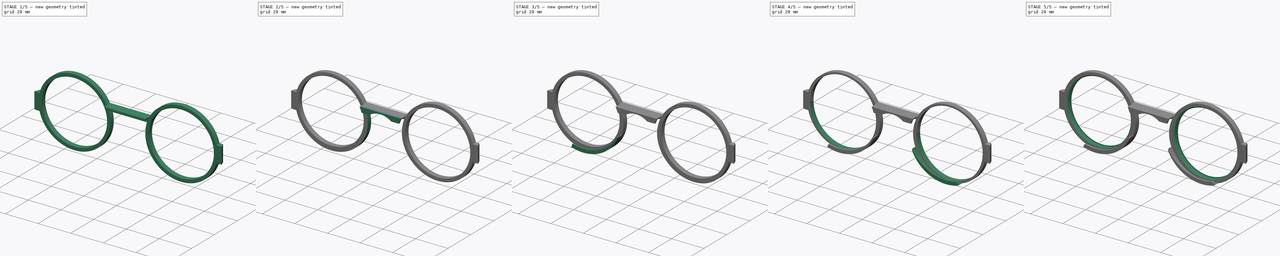
[diagram: build sequence overview — one tinted view per stage of 5, left to right]
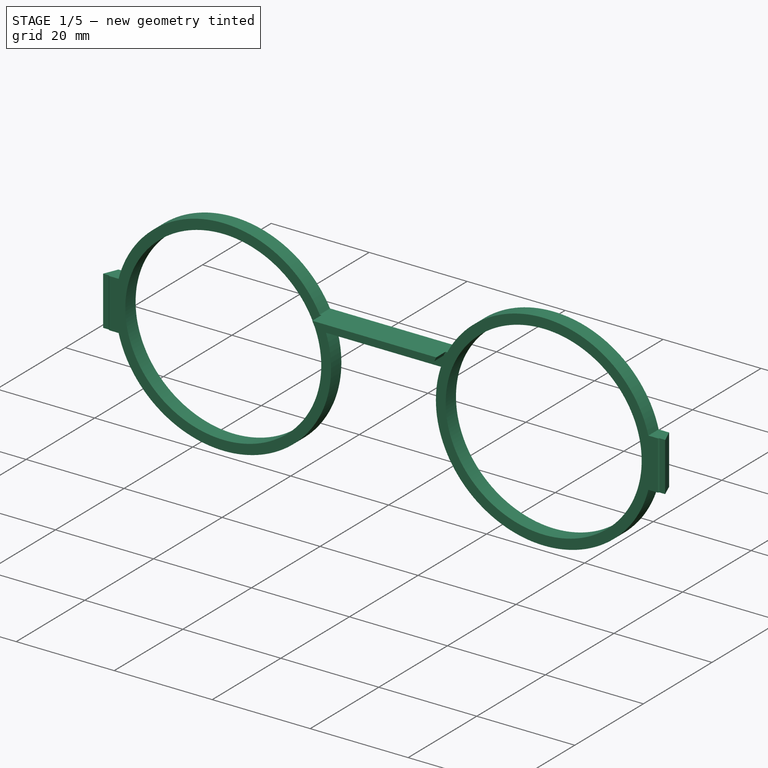
[diagram: stage 1 of 5 — iso view after this stage's code; geometry added in this stage tinted green]
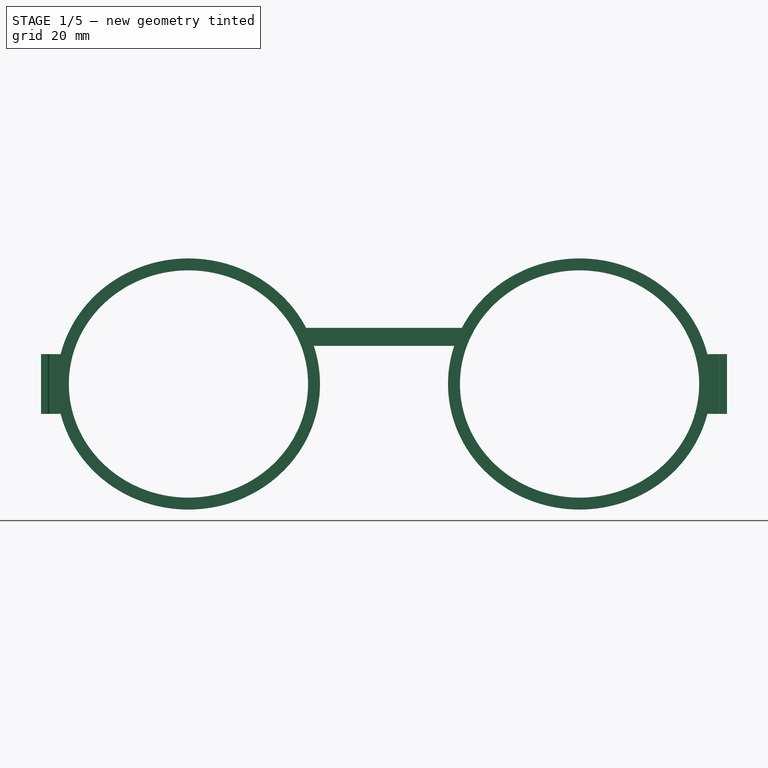
[diagram: stage 1 of 5 — front view after this stage's code; geometry added in this stage tinted green]
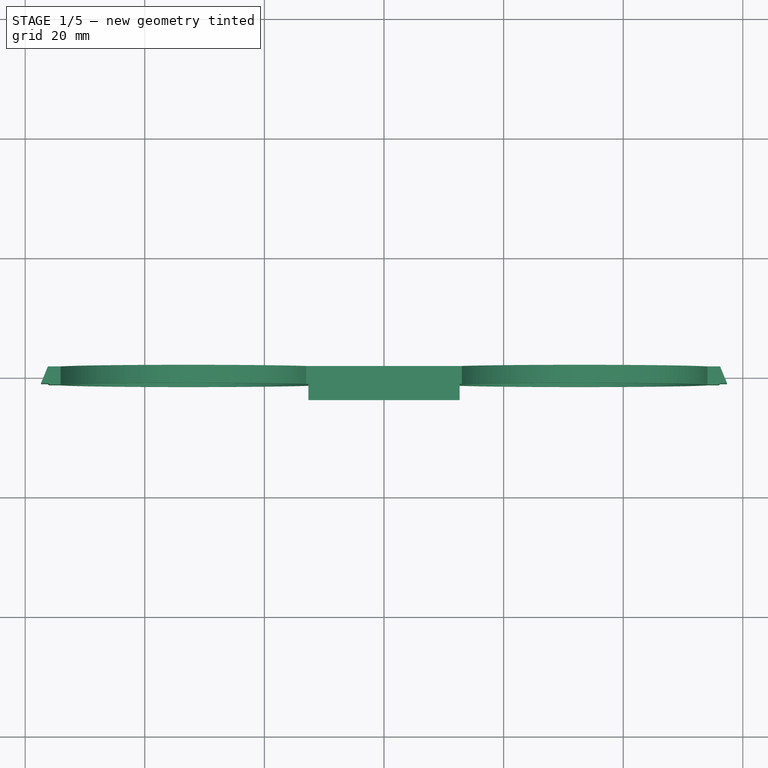
[diagram: stage 1 of 5 — top view after this stage's code; geometry added in this stage tinted green]
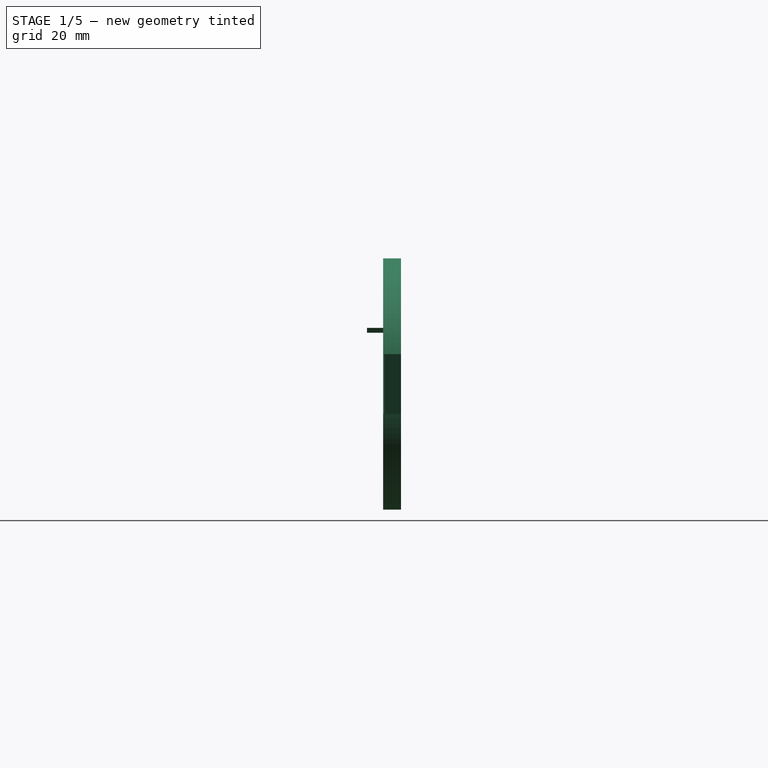
[diagram: stage 1 of 5 — right view after this stage's code; geometry added in this stage tinted green]
FCSTD DOCUMENT  (FreeCAD 1.1R39679 (Git))
Label: clip-on_shades_for_round_38.8mm_diam_lenses
License: All rights reserved
LicenseURL: http://en.wikipedia.org/wiki/All_rights_reserved
objects: Sketcher::SketchObject×12, PartDesign::Pad×11, PartDesign::Pocket×3, PartDesign::Mirrored×3, PartDesign::Fillet×1, App::Point×1, PartDesign::Chamfer×1, PartDesign::Body×1
note: 79 computed .brp shape members not serialized (recipe doc carries the construction recipe); baked Part::Feature solids carry a one-line shape summary decoded from their .brp

FEATURE [Sketcher::SketchObject] Sketch
  ArcFitTolerance = 1e-06
  AttachmentSupport = -> [XZ_Plane]
  ExternalTypes = [0]
  FullyConstrained = true
  MakeInternals = false
  MapMode = 5
  Placement = pos=(0,0,0) rot=(1,0,0;1.5708rad)
  sketch-geometry (24):
    g0: Ellipse CenterX=-32.7 CenterY=0 CenterZ=0 NormalX=0 NormalY=0 NormalZ=1 MajorRadius=20 MinorRadius=19 AngleXU=-2.2e-15
    g1: LineSegment [constr] StartX=-12.7 StartY=0 StartZ=0 EndX=-52.7 EndY=0 EndZ=0
    g2: LineSegment [constr] StartX=-32.7 StartY=19 StartZ=0 EndX=-32.7 EndY=-19 EndZ=0
    g3: GeomPoint [constr] X=-26.455 Y=-1.37e-14 Z=0
    g4: GeomPoint [constr] X=-38.945 Y=1.39e-14 Z=0
    g5: Ellipse CenterX=32.7 CenterY=0 CenterZ=0 NormalX=0 NormalY=0 NormalZ=1 MajorRadius=20 MinorRadius=19 AngleXU=0
    g6: LineSegment [constr] StartX=52.7 StartY=0 StartZ=0 EndX=12.7 EndY=0 EndZ=0
    g7: LineSegment [constr] StartX=32.7 StartY=19 StartZ=0 EndX=32.7 EndY=-19 EndZ=0
    g8: GeomPoint [constr] X=38.945 Y=0 Z=0
    g9: GeomPoint [constr] X=26.455 Y=0 Z=0
    g10: ArcOfEllipse CenterX=-32.7 CenterY=0 CenterZ=0 NormalX=0 NormalY=0 NormalZ=1 MajorRadius=22 MinorRadius=21 AngleXU=-4.6e-15 StartAngle=0.410218 EndAngle=6.59162
    g11: LineSegment [constr] StartX=-10.7 StartY=0 StartZ=0 EndX=-54.7 EndY=0 EndZ=0
    g12: LineSegment [constr] StartX=-32.7 StartY=21 StartZ=0 EndX=-32.7 EndY=-21 EndZ=0
    g13: GeomPoint [constr] X=-26.1426 Y=-3.02e-14 Z=0
    g14: GeomPoint [constr] X=-39.2574 Y=3e-14 Z=0
    g15: ArcOfEllipse CenterX=32.7 CenterY=0 CenterZ=0 NormalX=0 NormalY=0 NormalZ=1 MajorRadius=22 MinorRadius=21 AngleXU=0 StartAngle=2.83315 EndAngle=9.01456
    g16: LineSegment [constr] StartX=54.7 StartY=0 StartZ=0 EndX=10.7 EndY=0 EndZ=0
    g17: LineSegment [constr] StartX=32.7 StartY=21 StartZ=0 EndX=32.7 EndY=-21 EndZ=0
    g18: GeomPoint [constr] X=39.2574 Y=0 Z=0
    g19: GeomPoint [constr] X=26.1426 Y=-3e-16 Z=0
    g20: LineSegment StartX=-11.7382 StartY=6.375 StartZ=0 EndX=11.7382 EndY=6.375 EndZ=0
    g21: LineSegment StartX=-12.5253 StartY=8.375 StartZ=0 EndX=12.5253 EndY=8.375 EndZ=0
    g22: Circle CenterX=-32.7 CenterY=0 CenterZ=0 NormalX=0 NormalY=0 NormalZ=1 AngleXU=0 Radius=0.5
    g23: Circle CenterX=32.7 CenterY=0 CenterZ=0 NormalX=0 NormalY=0 NormalZ=1 AngleXU=0 Radius=0.5
  constraints (33):
    c: InternalAlignment(g1-g4 -> g0) x4
    c: PointOnObject(g0,g-1)
    c: Horizontal(g1)
    c: DistanceX(g1,g1) = 40
    c: DistanceY(g2,g2) = 38
    c: InternalAlignment(g6-g9 -> g5) x4
    c: Horizontal(g6)
    c: Equal(g1,g6)
    c: Equal(g7,g2)
    c: Symmetric(g5,g0,g-2)
    c: DistanceX(g0,g5) = 65.4
    c: InternalAlignment(g11-g14 -> g10) x4
    c: Coincident(g10,g0)
    c: Horizontal(g11)
    c: DistanceX(g1,g11) = 2
    c: DistanceY(g12,g2) = 2
    c: InternalAlignment(g16-g19 -> g15) x4
    c: Symmetric(g0,g15,g-2)
    c: Horizontal(g16)
    c: Equal(g16,g11)
    c: Equal(g17,g12)
    c: Horizontal(g10,g15)
    c: Horizontal(g15,g10)
    c: Coincident(g20,g10)
    c: Coincident(g20,g15)
    c: Coincident(g21,g10)
    c: Coincident(g21,g15)
    c: Distance(g20,g21) = 2
    c: Distance(g-1,g20) = 6.375
    c: Coincident(g22,g0)
    c: Diameter(g22) = 1
    c: Equal(g22,g23)
    c: Symmetric(g22,g23,g-2)
FEATURE [PartDesign::Pad] Pad  label="Lenses holder"
  Direction = (0,-1,2e-16)
  Length = 3
  Length2 = 10
  Midplane = true
  Placement = pos=(0,0,0) rot=(1,0,0;1.5708rad)
  Profile = -> Sketch
  ReferenceAxis = -> Sketch [N_Axis]
  Suppressed = false
  Type = 0
FEATURE [Sketcher::SketchObject] Sketch012
  ArcFitTolerance = 1e-06
  AttachmentSupport = -> [XY_Plane]
  ExternalGeometry = -> [Pad]
  ExternalTypes = [0]
  FullyConstrained = true
  MakeInternals = false
  MapMode = 5
  sketch-geometry (26):
    g0: LineSegment StartX=-53.2 StartY=1.5 StartZ=0 EndX=-56.2 EndY=1.5 EndZ=0
    g1: LineSegment [constr] StartX=-56.2 StartY=1.5 StartZ=0 EndX=-56.2 EndY=-1.5 EndZ=0
    g2: LineSegment StartX=-53.2 StartY=-1.5 StartZ=0 EndX=-53.2 EndY=1.5 EndZ=0
    g3: LineSegment StartX=53.2 StartY=-1.5 StartZ=0 EndX=53.2 EndY=1.5 EndZ=0
    g4: LineSegment StartX=53.2 StartY=1.5 StartZ=0 EndX=56.2 EndY=1.5 EndZ=0
    g5: LineSegment [constr] StartX=-54.7 StartY=-3.5 StartZ=0 EndX=-10.7 EndY=-3.5 EndZ=0
    g6: Circle [constr] CenterX=-56.2 CenterY=-5 CenterZ=0 NormalX=0 NormalY=0 NormalZ=1 AngleXU=0 Radius=1.5
    g7: ArcOfCircle [constr] CenterX=-53.2 CenterY=-5 CenterZ=0 NormalX=0 NormalY=0 NormalZ=1 AngleXU=0 Radius=1.5 StartAngle=1.5708 EndAngle=3.14159
    g8: LineSegment [constr] StartX=-58.7 StartY=-5 StartZ=0 EndX=-74.5344 EndY=-90 EndZ=0
    g9: LineSegment [constr] StartX=-58.7 StartY=-5 StartZ=0 EndX=-57.7 EndY=-5 EndZ=0
    g10: LineSegment [constr] StartX=-74.5344 StartY=-90 StartZ=0 EndX=-72.5682 EndY=-90.3663 EndZ=0
    g11: LineSegment [constr] StartX=-72.5682 StartY=-90.3663 StartZ=0 EndX=-72.5 EndY=-90 EndZ=0
    g12: LineSegment [constr] StartX=72.5682 StartY=-90.3663 StartZ=0 EndX=72.5 EndY=-90 EndZ=0
    g13: ArcOfEllipse [constr] CenterX=-56.2 CenterY=-6.90806 CenterZ=0 NormalX=0 NormalY=0 NormalZ=1 MajorRadius=5.40806 MinorRadius=2.67182 AngleXU=1.5708 StartAngle=1.11969e-07 EndAngle=1.21022
    g14: GeomPoint [constr] X=-56.2 Y=-1.5 Z=0
    g15: LineSegment StartX=-56.2 StartY=1.5 StartZ=0 EndX=-57.362 EndY=-1.3 EndZ=0
    g16: LineSegment StartX=-57.362 StartY=-1.3 StartZ=0 EndX=-56.2 EndY=-1.3 EndZ=0
    g17: LineSegment [constr] StartX=-57.362 StartY=-1.3 StartZ=0 EndX=-58.2458 EndY=-3.4296 EndZ=0
    g18: LineSegment StartX=57.362 StartY=-1.3 StartZ=0 EndX=56.2 EndY=-1.3 EndZ=0
    g19: LineSegment StartX=56.2 StartY=1.5 StartZ=0 EndX=57.362 EndY=-1.3 EndZ=0
    g20: LineSegment StartX=-56.2 StartY=-1.3 StartZ=0 EndX=-56 EndY=-1.5 EndZ=0
    g21: LineSegment [constr] StartX=-56.2 StartY=-1.5 StartZ=0 EndX=-56 EndY=-1.5 EndZ=0
    g22: GeomPoint [constr] X=-56.2 Y=-1.5 Z=0
    g23: LineSegment StartX=56.2 StartY=-1.3 StartZ=0 EndX=56 EndY=-1.5 EndZ=0
    g24: LineSegment StartX=-53.2 StartY=-1.5 StartZ=0 EndX=-56 EndY=-1.5 EndZ=0
    g25: LineSegment StartX=53.2 StartY=-1.5 StartZ=0 EndX=56 EndY=-1.5 EndZ=0
  constraints (71):
    c: Coincident(g0,g1)
    c: Coincident(g2,g0)
    c: Horizontal(g0)
    c: Vertical(g2)
    c: Coincident(g3,g4)
    c: Symmetric(g3,g0,g-2)
    c: Horizontal(g5)
    c: Vertical(g-3,g5)
    c: Vertical(g-3,g5)
    c: Diameter(g6) = 3
    c: Distance(g-3,g5) = 2
    c: Tangent(g5,g6)
    c: PointOnObject(g6,g1)
    c: Symmetric(g1,g0,g-1)
    c: PointOnObject(g7,g6)
    c: PointOnObject(g7,g5)
    c: Horizontal(g6,g7)
    c: Vertical(g7,g7)
    c: Horizontal(g7,g7)
    c: Vertical(g5,g7)
    c: PointOnObject(g7,g2)
    c: Coincident(g9,g8)
    c: PointOnObject(g9,g6)
    c: Horizontal(g9)
    c: PointOnObject(g6,g9)
    c: DistanceX(g9,g9) = 1
    c: Coincident(g10,g8)
    c: Coincident(g11,g10)
    c: Perpendicular(g10,g8)
    c: Parallel(g8,g11)
    c: Horizontal(g8,g11)
    c: Distance(g10,g10) = 2
    c: Symmetric(g11,g12,g-2)
    c: Symmetric(g11,g12,g-2)
    c: DistanceX(g11,g12) = 145
    c: DistanceY(g11,g6) = 85
    c: Coincident(g1,g13)
    c: PointOnObject(g14,g13)
    c: Tangent(g13,g8) = -1.5708
    c: Vertical(g13,g6)
    c: Coincident(g15,g0)
    c: Coincident(g16,g15)
    c: PointOnObject(g16,g1)
    c: Horizontal(g16)
    c: Coincident(g17,g15)
    c: Tangent(g17,g13) = -1.5708
    c: PointOnObject(g17,g15)
    c: Symmetric(g15,g19,g-2)
    c: Symmetric(g15,g19,g-2)
    c: Symmetric(g16,g18,g-2)
    c: Symmetric(g16,g18,g-2)
    c: Coincident(g20,g16)
    c: Angle(g1,g20) = 0.785398
    c: Coincident(g20,g21)
    c: Coincident(g14,g21)
    c: PointOnObject(g14,g1)
    c: PointOnObject(g22,g13)
    c: PointOnObject(g22,g21)
    c: Tangent(g13,g21,g22) = 1.5708
    c: Symmetric(g20,g23,g-2)
    c: Symmetric(g20,g23,g-2)
    c: Coincident(g24,g2)
    c: Coincident(g20,g24)
    c: Horizontal(g24)
    c: PointOnObject(g-3,g24)
    c: Distance(g16,g24) = 0.2
    c: Symmetric(g24,g25,g-2)
    c: Symmetric(g24,g25,g-2)
    c: PointOnObject(g22,g24)
    c: Coincident(g3,g25)
    c: Coincident(g4,g19)
FEATURE [PartDesign::Pad] Pad003  label="End pieces"
  BaseFeature = -> Pad
  Direction = (0,0,1)
  Length = 10
  Length2 = 10
  Midplane = true
  Placement = pos=(0,0,0) rot=(1,0,0;1.5708rad)
  Profile = -> Sketch012
  ReferenceAxis = -> Sketch012 [N_Axis]
  Refine = true
  Suppressed = false
  Type = 0
FEATURE [Sketcher::SketchObject] Sketch021  label="Nose bridge hook master sketch"
  ArcFitTolerance = 1e-06
  AttachmentSupport = -> [Pad003]
  ExternalGeometry = -> [Sketch]
  ExternalTypes = [0]
  FullyConstrained = true
  MakeInternals = false
  MapMode = 5
  Placement = pos=(0,-1.5,7e-16) rot=(1,0,0;1.5708rad)
  sketch-geometry (45):
    g0: ArcOfEllipse CenterX=-32.7 CenterY=7e-16 CenterZ=0 NormalX=0 NormalY=0 NormalZ=1 MajorRadius=22.3233 MinorRadius=21.3233 AngleXU=-3.14159 StartAngle=3.4452 EndAngle=3.54523
    g1: LineSegment [constr] StartX=-55.0233 StartY=0 StartZ=0 EndX=-10.3767 EndY=1.3e-15 EndZ=0
    g2: LineSegment [constr] StartX=-32.7 StartY=-21.3233 StartZ=0 EndX=-32.7 EndY=21.3233 EndZ=0
    g3: GeomPoint [constr] X=-39.3066 Y=-1e-16 Z=0
    g4: GeomPoint [constr] X=-26.0934 Y=9e-16 Z=0
    g5: LineSegment [constr] StartX=-55.0233 StartY=0 StartZ=0 EndX=-54.7 EndY=0 EndZ=0
    g6: ArcOfEllipse CenterX=32.7 CenterY=7e-16 CenterZ=0 NormalX=0 NormalY=0 NormalZ=1 MajorRadius=22.3233 MinorRadius=21.3233 AngleXU=3.14159 StartAngle=5.87955 EndAngle=5.97957
    g7: LineSegment [constr] StartX=10.3767 StartY=1.3e-15 StartZ=0 EndX=55.0233 EndY=0 EndZ=0
    g8: LineSegment [constr] StartX=32.7 StartY=-21.3233 StartZ=0 EndX=32.7 EndY=21.3233 EndZ=0
    g9: GeomPoint [constr] X=26.0934 Y=1.5e-15 Z=0
    g10: GeomPoint [constr] X=39.3066 Y=5e-16 Z=0
    g11: LineSegment StartX=-12.1706 StartY=8.375 StartZ=0 EndX=12.1706 EndY=8.375 EndZ=0
    g12: LineSegment [constr] StartX=-32.7 StartY=21.3233 StartZ=0 EndX=-32.7 EndY=21 EndZ=0
    g13: ArcOfEllipse CenterX=-32.7 CenterY=7e-16 CenterZ=0 NormalX=0 NormalY=0 NormalZ=1 MajorRadius=22.3233 MinorRadius=21.3233 AngleXU=-3.14159 StartAngle=3.54523 EndAngle=3.55545
    g14: LineSegment [constr] StartX=-55.0233 StartY=0 StartZ=0 EndX=-10.3767 EndY=1.3e-15 EndZ=0
    g15: LineSegment [constr] StartX=-32.7 StartY=-21.3233 StartZ=0 EndX=-32.7 EndY=21.3233 EndZ=0
    g16: GeomPoint [constr] X=-39.3066 Y=-1e-16 Z=0
    g17: GeomPoint [constr] X=-26.0934 Y=9e-16 Z=0
    g18: ArcOfEllipse CenterX=32.7 CenterY=7e-16 CenterZ=0 NormalX=0 NormalY=0 NormalZ=1 MajorRadius=22.3233 MinorRadius=21.3233 AngleXU=3.14159 StartAngle=5.86933 EndAngle=5.87955
    g19: LineSegment [constr] StartX=10.3767 StartY=1.3e-15 StartZ=0 EndX=55.0233 EndY=0 EndZ=0
    g20: LineSegment [constr] StartX=32.7 StartY=-21.3233 StartZ=0 EndX=32.7 EndY=21.3233 EndZ=0
    g21: GeomPoint [constr] X=26.0934 Y=1.5e-15 Z=0
    g22: GeomPoint [constr] X=39.3066 Y=5e-16 Z=0
    g23: LineSegment StartX=-12.2613 StartY=8.575 StartZ=0 EndX=12.2613 EndY=8.575 EndZ=0
    g24: ArcOfEllipse CenterX=-32.7 CenterY=7e-16 CenterZ=0 NormalX=0 NormalY=0 NormalZ=1 MajorRadius=22.3233 MinorRadius=21.3233 AngleXU=-3.14159 StartAngle=3.55545 EndAngle=3.59681
    g25: LineSegment [constr] StartX=-55.0233 StartY=0 StartZ=0 EndX=-10.3767 EndY=1.3e-15 EndZ=0
    g26: LineSegment [constr] StartX=-32.7 StartY=-21.3233 StartZ=0 EndX=-32.7 EndY=21.3233 EndZ=0
    g27: GeomPoint [constr] X=-39.3066 Y=-1e-16 Z=0
    g28: GeomPoint [constr] X=-26.0934 Y=9e-16 Z=0
    g29: ArcOfEllipse CenterX=32.7 CenterY=7e-16 CenterZ=0 NormalX=0 NormalY=0 NormalZ=1 MajorRadius=22.3233 MinorRadius=21.3233 AngleXU=3.14159 StartAngle=5.82797 EndAngle=5.86933
    g30: LineSegment [constr] StartX=10.3767 StartY=1.3e-15 StartZ=0 EndX=55.0233 EndY=0 EndZ=0
    g31: LineSegment [constr] StartX=32.7 StartY=-21.3233 StartZ=0 EndX=32.7 EndY=21.3233 EndZ=0
    g32: GeomPoint [constr] X=26.0934 Y=1.5e-15 Z=0
    g33: GeomPoint [constr] X=39.3066 Y=5e-16 Z=0
    g34: LineSegment StartX=-12.65 StartY=9.375 StartZ=0 EndX=12.65 EndY=9.375 EndZ=0
    g35: LineSegment StartX=-12.65 StartY=9.375 StartZ=0 EndX=-13.014 EndY=9.375 EndZ=0
    g36: LineSegment StartX=-13.014 StartY=9.375 StartZ=0 EndX=-12.5253 EndY=8.375 EndZ=0
    g37: LineSegment StartX=-12.5253 StartY=8.375 StartZ=0 EndX=-12.1706 EndY=8.375 EndZ=0
    g38: LineSegment StartX=13.014 StartY=9.375 StartZ=0 EndX=12.5253 EndY=8.375 EndZ=0
    g39: LineSegment StartX=12.65 StartY=9.375 StartZ=0 EndX=13.014 EndY=9.375 EndZ=0
    g40: LineSegment StartX=12.5253 StartY=8.375 StartZ=0 EndX=12.1706 EndY=8.375 EndZ=0
    g41: LineSegment StartX=-11.3977 StartY=6.375 StartZ=0 EndX=-6.75 EndY=6.375 EndZ=0
    g42: LineSegment StartX=-6.75 StartY=6.375 StartZ=0 EndX=6.75 EndY=6.375 EndZ=0
    g43: LineSegment StartX=6.75 StartY=6.375 StartZ=0 EndX=11.3977 EndY=6.375 EndZ=0
    g44: ArcOfCircle CenterX=-1.9e-15 CenterY=-2.88011 CenterZ=0 NormalX=0 NormalY=0 NormalZ=1 AngleXU=0 Radius=11.4551 StartAngle=0.940658 EndAngle=2.20093
  constraints (73):
    c: InternalAlignment(g1-g4 -> g0) x4
    c: Coincident(g0,g-3)
    c: Coincident(g5,g1)
    c: PointOnObject(g5,g-3)
    c: PointOnObject(g5,g1)
    c: PointOnObject(g1,g-1)
    c: PointOnObject(g0,g-5)
    c: InternalAlignment(g7-g10 -> g6) x4
    c: Symmetric(g7,g1,g-2)
    c: Symmetric(g0,g6,g-2)
    c: Horizontal(g2,g8)
    c: Horizontal(g0,g6)
    c: Horizontal(g0,g6)
    c: Coincident(g43,g6)
    c: PointOnObject(g0,g-4)
    c: Coincident(g11,g0)
    c: Coincident(g11,g6)
    c: Coincident(g41,g0)
    c: Coincident(g12,g2)
    c: PointOnObject(g12,g-3)
    c: Equal(g12,g5)
    c: PointOnObject(g12,g2)
    c: InternalAlignment(g14-g17 -> g13) x4
    c: Coincident(g13,g0)
    c: Coincident(g1,g14)
    c: Horizontal(g2,g15)
    c: PointOnObject(g13,g11)
    c: Distance(g13,g11) = 0.2
    c: InternalAlignment(g19-g22 -> g18) x4
    c: Symmetric(g18,g0,g-2)
    c: Symmetric(g19,g1,g-2)
    c: Horizontal(g20,g2)
    c: Horizontal(g18,g13)
    c: Horizontal(g13,g18)
    c: Coincident(g23,g13)
    c: Coincident(g23,g18)
    c: InternalAlignment(g25-g28 -> g24) x4
    c: Coincident(g24,g0)
    c: Coincident(g1,g25)
    c: Horizontal(g2,g26)
    c: PointOnObject(g24,g23)
    c: InternalAlignment(g30-g33 -> g29) x4
    c: Symmetric(g29,g0,g-2)
    c: Symmetric(g30,g1,g-2)
    c: Horizontal(g31,g2)
    c: Horizontal(g29,g24)
    c: Horizontal(g24,g29)
    c: Coincident(g34,g24)
    c: Coincident(g34,g29)
    c: Coincident(g35,g24)
    c: PointOnObject(g35,g-3)
    c: Horizontal(g35)
    c: Coincident(g35,g36)
    c: Coincident(g36,g-4)
    c: Coincident(g37,g36)
    c: Coincident(g37,g13)
    c: Symmetric(g35,g39,g-2)
    c: Symmetric(g35,g39,g-2)
    c: Symmetric(g36,g38,g-2)
    c: Symmetric(g36,g38,g-2)
    c: Symmetric(g37,g40,g-2)
    c: Symmetric(g37,g40,g-2)
    c: Coincident(g41,g42)
    c: Coincident(g42,g43)
    c: Horizontal(g41)
    c: Horizontal(g43)
    c: Equal(g41,g43)
    c: Coincident(g41,g44)
    c: Coincident(g42,g44)
    c: Tangent(g23,g44)
    c: DistanceX(g41,g42) = 13.5
    c: DistanceX(g34,g34) = 25.3
    c: Distance(g34,g23) = 0.8
FEATURE [PartDesign::Pad] Pad007  label="Nose bridge hook #1"
  BaseFeature = -> Pad003
  Direction = (0,-1,2e-16)
  Length = 10
  Length2 = 10
  Placement = pos=(0,0,0) rot=(1,0,0;1.5708rad)
  Profile = -> Sketch021 [Edge7,Edge6,Edge1,Edge8,Edge11,Edge17,Edge18,Edge19]
  ReferenceAxis = -> Sketch021 [N_Axis]
  Refine = true
  Suppressed = false
  Type = 3
  UpToFace = -> Pad003 [Face17]
FEATURE [PartDesign::Pad] Pad005  label="Nose bridge hook #2"
  BaseFeature = -> Pad007
  Direction = (0,-1,2e-16)
  Length = 2.7
  Length2 = 10
  Placement = pos=(0,0,0) rot=(1,0,0;1.5708rad)
  Profile = -> Sketch021 [Edge5,Edge1,Edge3,Edge2]
  ReferenceAxis = -> Sketch021 [N_Axis]
  Refine = true
  Suppressed = false
  Type = 0
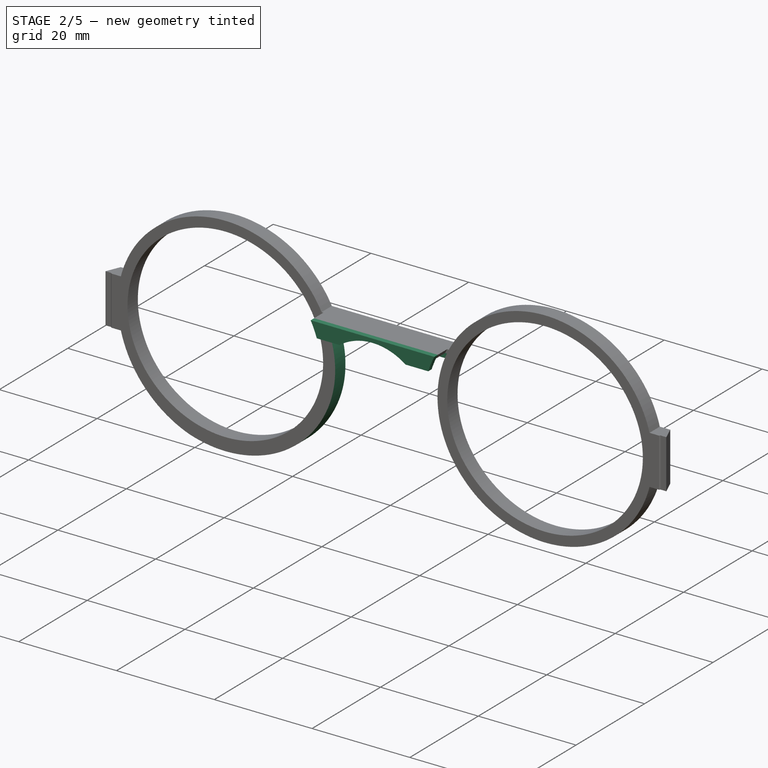
[diagram: stage 2 of 5 — iso view after this stage's code; geometry added in this stage tinted green]
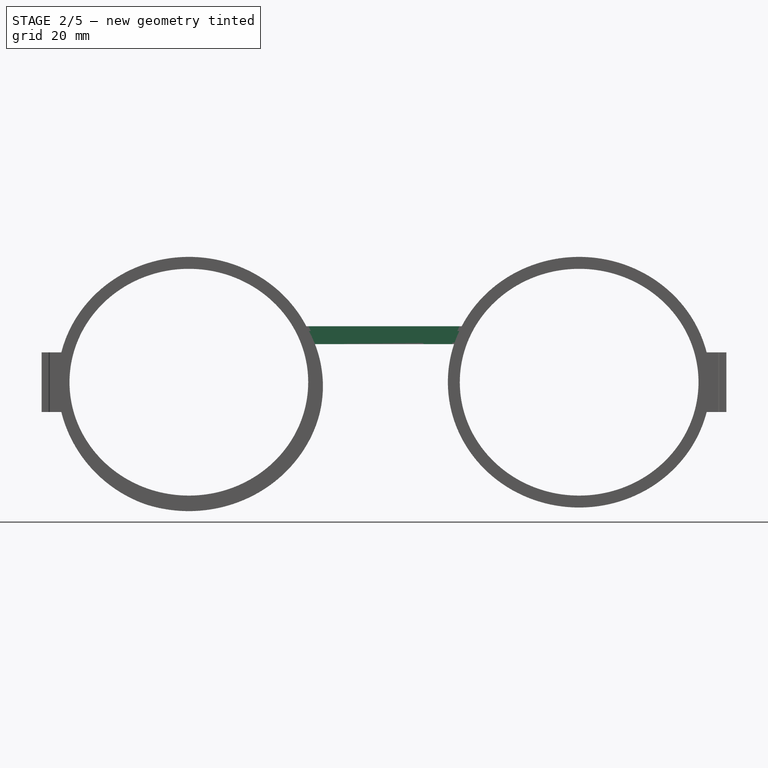
[diagram: stage 2 of 5 — front view after this stage's code; geometry added in this stage tinted green]
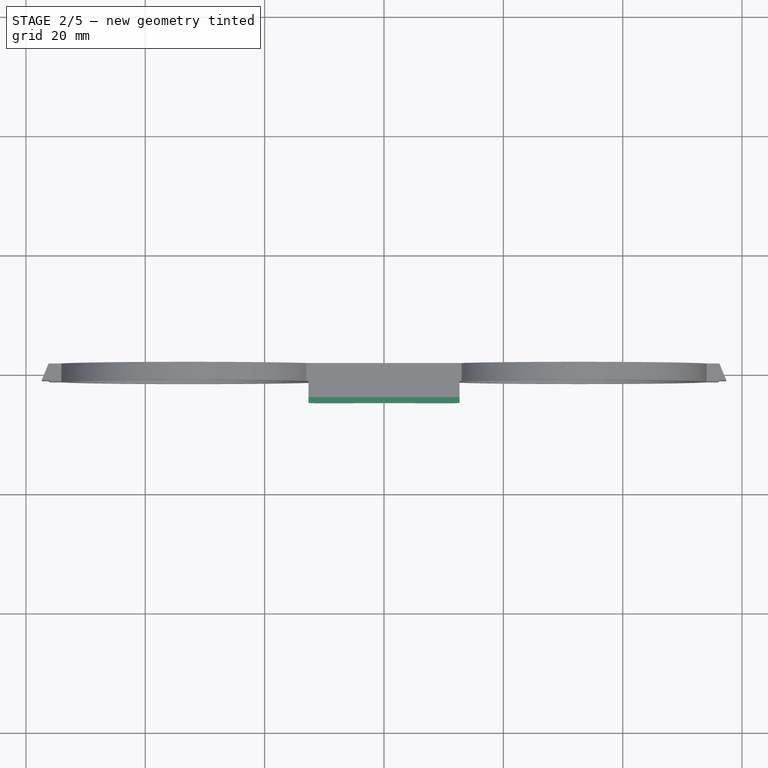
[diagram: stage 2 of 5 — top view after this stage's code; geometry added in this stage tinted green]
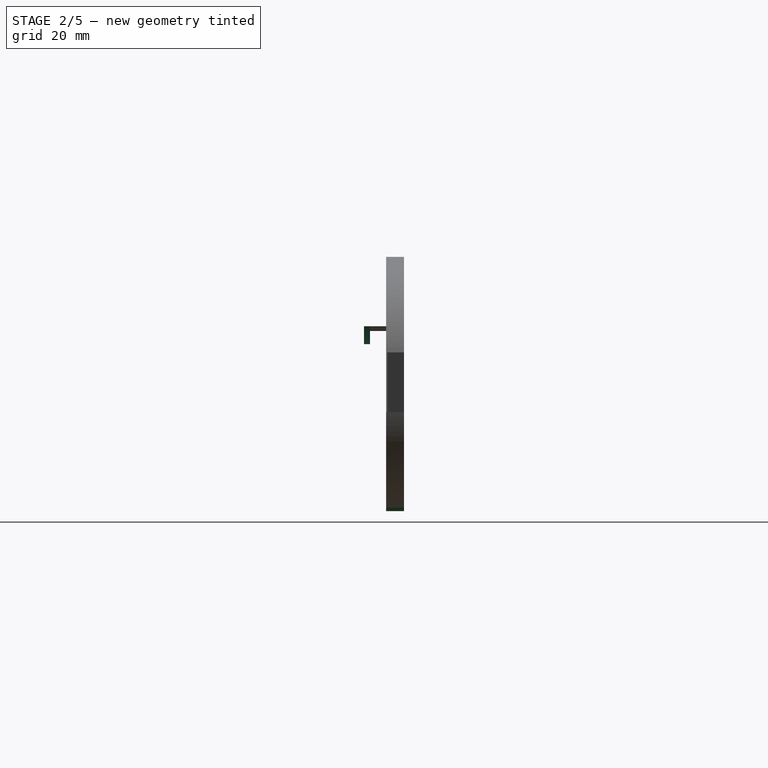
[diagram: stage 2 of 5 — right view after this stage's code; geometry added in this stage tinted green]
FEATURE [Sketcher::SketchObject] Sketch022
  ArcFitTolerance = 1e-06
  AttachmentSupport = -> [Pad005]
  ExternalGeometry = -> [Sketch021]
  ExternalTypes = [0]
  FullyConstrained = true
  MakeInternals = false
  MapMode = 5
  Placement = pos=(0,-4.2,0) rot=(1,0,0;1.5708rad)
  sketch-geometry (14):
    g0: ArcOfCircle CenterX=-1.9e-15 CenterY=-2.88011 CenterZ=0 NormalX=0 NormalY=0 NormalZ=1 AngleXU=0 Radius=11.4551 StartAngle=0.940658 EndAngle=2.20093
    g1: LineSegment StartX=-11.3977 StartY=6.375 StartZ=0 EndX=-6.75 EndY=6.375 EndZ=0
    g2: LineSegment StartX=11.3977 StartY=6.375 StartZ=0 EndX=6.75 EndY=6.375 EndZ=0
    g3: ArcOfEllipse CenterX=-32.7 CenterY=8e-16 CenterZ=0 NormalX=0 NormalY=0 NormalZ=1 MajorRadius=22.3233 MinorRadius=21.3233 AngleXU=-3.14159 StartAngle=3.4452 EndAngle=3.59681
    g4: LineSegment [constr] StartX=-55.0233 StartY=0 StartZ=0 EndX=-10.3767 EndY=1.6e-15 EndZ=0
    g5: LineSegment [constr] StartX=-32.7 StartY=-21.3233 StartZ=0 EndX=-32.7 EndY=21.3233 EndZ=0
    g6: GeomPoint [constr] X=-39.3066 Y=0 Z=0
    g7: GeomPoint [constr] X=-26.0934 Y=1.1e-15 Z=0
    g8: ArcOfEllipse CenterX=32.7 CenterY=8e-16 CenterZ=0 NormalX=0 NormalY=0 NormalZ=1 MajorRadius=22.3233 MinorRadius=21.3233 AngleXU=-3.14159 StartAngle=5.82797 EndAngle=5.97957
    g9: LineSegment [constr] StartX=10.3767 StartY=0 StartZ=0 EndX=55.0233 EndY=1.6e-15 EndZ=0
    g10: LineSegment [constr] StartX=32.7 StartY=-21.3233 StartZ=0 EndX=32.7 EndY=21.3233 EndZ=0
    g11: GeomPoint [constr] X=26.0934 Y=0 Z=0
    g12: GeomPoint [constr] X=39.3066 Y=1.1e-15 Z=0
    g13: LineSegment StartX=-12.65 StartY=9.375 StartZ=0 EndX=12.65 EndY=9.375 EndZ=0
  constraints (21):
    c: Coincident(g0,g-5)
    c: Coincident(g0,g-5)
    c: Vertical(g-5,g0)
    c: Coincident(g1,g-4)
    c: Coincident(g1,g0)
    c: Symmetric(g1,g2,g-2)
    c: Symmetric(g1,g2,g-2)
    c: InternalAlignment(g4-g7 -> g3) x4
    c: Coincident(g3,g-3)
    c: Equal(g3,g-3)
    c: PointOnObject(g4,g-1)
    c: PointOnObject(g3,g1)
    c: PointOnObject(g3,g-6)
    c: InternalAlignment(g9-g12 -> g8) x4
    c: Symmetric(g8,g3,g-2)
    c: Equal(g8,g-3)
    c: PointOnObject(g9,g-1)
    c: PointOnObject(g8,g2)
    c: PointOnObject(g8,g-6)
    c: Coincident(g13,g3)
    c: Coincident(g13,g8)
FEATURE [PartDesign::Pad] Pad006  label="Nose bridge hook #3"
  BaseFeature = -> Pad005
  Direction = (0,-1,2e-16)
  Length = 1
  Length2 = 10
  Placement = pos=(0,0,0) rot=(1,0,0;1.5708rad)
  Profile = -> Sketch022
  ReferenceAxis = -> Sketch022 [N_Axis]
  Refine = true
  Suppressed = false
  Type = 0
FEATURE [Sketcher::SketchObject] Sketch025
  ArcFitTolerance = 1e-06
  AttachmentOffset = pos=(0,0,-0.8) rot=(0,0,1;3.14159rad)
  AttachmentSupport = -> [Pad006]
  ExternalGeometry = -> [Sketch,Sketch021]
  ExternalTypes = [0]
  FullyConstrained = true
  MakeInternals = false
  MapMode = 5
  Placement = pos=(0,0.7,-1e-15) rot=(0,0.707107,0.707107;3.14159rad)
  sketch-geometry (12):
    g0: ArcOfEllipse CenterX=32.7 CenterY=4.8e-15 CenterZ=0 NormalX=0 NormalY=0 NormalZ=1 MajorRadius=22 MinorRadius=21 AngleXU=-3.14159 StartAngle=5.92434 EndAngle=5.97475
    g1: LineSegment [constr] StartX=10.7 StartY=0 StartZ=0 EndX=54.7 EndY=9.6e-15 EndZ=0
    g2: LineSegment [constr] StartX=32.7 StartY=-21 StartZ=0 EndX=32.7 EndY=21 EndZ=0
    g3: GeomPoint [constr] X=26.1426 Y=4e-15 Z=0
    g4: GeomPoint [constr] X=39.2574 Y=6.2e-15 Z=0
    g5: ArcOfEllipse CenterX=-32.7 CenterY=4.8e-15 CenterZ=0 NormalX=0 NormalY=0 NormalZ=1 MajorRadius=22 MinorRadius=21 AngleXU=-2e-16 StartAngle=0.308439 EndAngle=0.358842
    g6: LineSegment [constr] StartX=-10.7 StartY=0 StartZ=0 EndX=-54.7 EndY=9.6e-15 EndZ=0
    g7: LineSegment [constr] StartX=-32.7 StartY=21 StartZ=0 EndX=-32.7 EndY=-21 EndZ=0
    g8: GeomPoint [constr] X=-26.1426 Y=3.5e-15 Z=0
    g9: GeomPoint [constr] X=-39.2574 Y=6.2e-15 Z=0
    g10: LineSegment StartX=-12.1013 StartY=7.375 StartZ=0 EndX=12.1013 EndY=7.375 EndZ=0
    g11: LineSegment StartX=-11.7382 StartY=6.375 StartZ=0 EndX=11.7382 EndY=6.375 EndZ=0
  constraints (16):
    c: InternalAlignment(g1-g4 -> g0) x4
    c: Coincident(g0,g-3)
    c: PointOnObject(g1,g-1)
    c: Equal(g0,g-3)
    c: PointOnObject(g0,g-5)
    c: Distance(g0,g-4) = 2
    c: InternalAlignment(g6-g9 -> g5) x4
    c: Symmetric(g5,g0,g-2)
    c: PointOnObject(g6,g-1)
    c: Equal(g5,g-3)
    c: PointOnObject(g5,g-5)
    c: Horizontal(g5,g0)
    c: Coincident(g5,g10)
    c: Coincident(g0,g10)
    c: Coincident(g11,g5)
    c: Coincident(g11,g0)
FEATURE [PartDesign::Pocket] Pocket001  label="Nose bridge hook #4"
  BaseFeature = -> Pad006
  Direction = (0,-1,-2e-16)
  Length = 0
  Length2 = 5
  Placement = pos=(0,0,0) rot=(1,0,0;1.5708rad)
  Profile = -> Sketch025
  ReferenceAxis = -> Sketch025 [N_Axis]
  Refine = true
  Suppressed = false
  Type = 3
  UpToFace = -> Pad006 [Face1]
FEATURE [Sketcher::SketchObject] Sketch026
  ArcFitTolerance = 1e-06
  AttachmentSupport = -> [Pocket001]
  ExternalGeometry = -> [Sketch,Sketch021]
  ExternalTypes = [0]
  FullyConstrained = true
  MakeInternals = false
  MapMode = 5
  Placement = pos=(0,-1.5,7e-16) rot=(1,0,0;1.5708rad)
  sketch-geometry (12):
    g0: ArcOfEllipse CenterX=-32.7 CenterY=0 CenterZ=0 NormalX=0 NormalY=0 NormalZ=1 MajorRadius=22 MinorRadius=21 AngleXU=3.14159 StartAngle=3.45003 EndAngle=3.56222
    g1: LineSegment [constr] StartX=-54.7 StartY=0 StartZ=0 EndX=-10.7 EndY=0 EndZ=0
    g2: LineSegment [constr] StartX=-32.7 StartY=-21 StartZ=0 EndX=-32.7 EndY=21 EndZ=0
    g3: GeomPoint [constr] X=-39.2574 Y=8e-16 Z=0
    g4: GeomPoint [constr] X=-26.1426 Y=0 Z=0
    g5: ArcOfEllipse CenterX=32.7 CenterY=0 CenterZ=0 NormalX=0 NormalY=0 NormalZ=1 MajorRadius=22 MinorRadius=21 AngleXU=3.14159 StartAngle=5.86256 EndAngle=5.97475
    g6: LineSegment [constr] StartX=10.7 StartY=0 StartZ=0 EndX=54.7 EndY=0 EndZ=0
    g7: LineSegment [constr] StartX=32.7 StartY=-21 StartZ=0 EndX=32.7 EndY=21 EndZ=0
    g8: GeomPoint [constr] X=26.1426 Y=8e-16 Z=0
    g9: GeomPoint [constr] X=39.2574 Y=0 Z=0
    g10: LineSegment StartX=-11.7382 StartY=6.375 StartZ=0 EndX=11.7382 EndY=6.375 EndZ=0
    g11: LineSegment StartX=-12.6177 StartY=8.575 StartZ=0 EndX=12.6177 EndY=8.575 EndZ=0
  constraints (16):
    c: InternalAlignment(g1-g4 -> g0) x4
    c: Coincident(g0,g-3)
    c: PointOnObject(g1,g-1)
    c: Equal(g0,g-3)
    c: PointOnObject(g0,g-4)
    c: InternalAlignment(g6-g9 -> g5) x4
    c: Symmetric(g5,g0,g-2)
    c: PointOnObject(g6,g-1)
    c: Equal(g-3,g5)
    c: PointOnObject(g5,g-4)
    c: Coincident(g10,g0)
    c: Coincident(g5,g10)
    c: PointOnObject(g0,g-5)
    c: PointOnObject(g5,g-5)
    c: Coincident(g11,g0)
    c: Coincident(g11,g5)
FEATURE [PartDesign::Pocket] Pocket002  label="Nose bridge hook ¤5"
  BaseFeature = -> Pocket001
  Direction = (0,1,-2e-16)
  Length = 0.5
  Length2 = 5
  Placement = pos=(0,0,0) rot=(1,0,0;1.5708rad)
  Profile = -> Sketch026
  ReferenceAxis = -> Sketch026 [N_Axis]
  Refine = true
  Suppressed = false
  Type = 0
FEATURE [Sketcher::SketchObject] Sketch028  label="Left-hand side hook wall master sketch"
  ArcFitTolerance = 1e-06
  AttachmentSupport = -> [Pocket002]
  ExternalGeometry = -> [Sketch,Sketch021]
  ExternalTypes = [0]
  FullyConstrained = true
  MakeInternals = false
  MapMode = 5
  Placement = pos=(0,-1.5,7e-16) rot=(1,0,0;1.5708rad)
  sketch-geometry (32):
    g0: LineSegment [constr] StartX=-32.7 StartY=0 StartZ=0 EndX=-39.92 EndY=-19.8369 EndZ=0
    g1: LineSegment [constr] StartX=-39.92 StartY=-19.8369 StartZ=0 EndX=-39.9884 EndY=-20.0248 EndZ=0
    g2: LineSegment StartX=-39.9884 StartY=-20.0248 StartZ=0 EndX=-40.1253 EndY=-20.4007 EndZ=0
    g3: LineSegment [constr] StartX=-32.7 StartY=0 StartZ=0 EndX=-54.7 EndY=0 EndZ=0
    g4: LineSegment [constr] StartX=-54.7 StartY=0 StartZ=0 EndX=-54.9 EndY=0 EndZ=0
    g5: LineSegment [constr] StartX=-54.9 StartY=0 StartZ=0 EndX=-55.3 EndY=0 EndZ=0
    g6: ArcOfEllipse CenterX=-32.7 CenterY=0 CenterZ=0 NormalX=0 NormalY=0 NormalZ=1 MajorRadius=22 MinorRadius=21 AngleXU=-3.14159 StartAngle=0.240404 EndAngle=3.60436
    g7: LineSegment [constr] StartX=-54.7 StartY=0 StartZ=0 EndX=-10.7 EndY=6e-16 EndZ=0
    g8: LineSegment [constr] StartX=-32.7 StartY=-21 StartZ=0 EndX=-32.7 EndY=21 EndZ=0
    g9: GeomPoint [constr] X=-39.2574 Y=-8e-16 Z=0
    g10: GeomPoint [constr] X=-26.1426 Y=4e-16 Z=0
    g11: ArcOfEllipse CenterX=-32.7 CenterY=0 CenterZ=0 NormalX=0 NormalY=0 NormalZ=1 MajorRadius=22.2 MinorRadius=21.1999 AngleXU=-3.14159 StartAngle=1.23628 EndAngle=2.77745
    g12: LineSegment [constr] StartX=-54.9 StartY=0 StartZ=0 EndX=-10.5 EndY=6e-16 EndZ=0
    g13: LineSegment [constr] StartX=-32.7 StartY=-21.1999 StartZ=0 EndX=-32.7 EndY=21.1999 EndZ=0
    g14: GeomPoint [constr] X=-39.2881 Y=-8e-16 Z=0
    g15: GeomPoint [constr] X=-26.1119 Y=4e-16 Z=0
    g16: ArcOfEllipse CenterX=-32.7 CenterY=0 CenterZ=0 NormalX=0 NormalY=0 NormalZ=1 MajorRadius=22.6 MinorRadius=21.5998 AngleXU=-3.14159 StartAngle=1.23603 EndAngle=2.77773
    g17: LineSegment [constr] StartX=-55.3 StartY=0 StartZ=0 EndX=-10.1 EndY=7e-16 EndZ=0
    g18: LineSegment [constr] StartX=-32.7 StartY=-21.5998 StartZ=0 EndX=-32.7 EndY=21.5998 EndZ=0
    g19: GeomPoint [constr] X=-39.349 Y=-8e-16 Z=0
    g20: GeomPoint [constr] X=-26.051 Y=4e-16 Z=0
    g21: ArcOfEllipse CenterX=-32.7 CenterY=0 CenterZ=0 NormalX=0 NormalY=0 NormalZ=1 MajorRadius=22.0471 MinorRadius=21.71 AngleXU=2.79253 StartAngle=0.58601 EndAngle=1.5708
    g22: LineSegment [constr] StartX=-53.4175 StartY=7.54055 StartZ=0 EndX=-11.9825 EndY=-7.54055 EndZ=0
    g23: LineSegment [constr] StartX=-40.1253 StartY=-20.4007 StartZ=0 EndX=-25.2747 EndY=20.4007 EndZ=0
    g24: GeomPoint [constr] X=-36.309 Y=1.31358 Z=0
    g25: GeomPoint [constr] X=-29.091 Y=-1.31358 Z=0
    g26: LineSegment StartX=-11.9557 StartY=-7.55032 StartZ=0 EndX=-11.5797 EndY=-7.68717 EndZ=0
    g27: ArcOfEllipse CenterX=-32.7 CenterY=0 CenterZ=0 NormalX=0 NormalY=0 NormalZ=1 MajorRadius=22.5304 MinorRadius=20.6279 AngleXU=-0.189523 StartAngle=6.10921 EndAngle=6.95977
    g28: LineSegment [constr] StartX=-10.573 StartY=-4.24452 StartZ=0 EndX=-54.827 EndY=4.24452 EndZ=0
    g29: LineSegment [constr] StartX=-28.8139 StartY=20.2585 StartZ=0 EndX=-36.5861 EndY=-20.2585 EndZ=0
    g30: GeomPoint [constr] X=-23.8008 Y=-1.7071 Z=0
    g31: GeomPoint [constr] X=-41.5992 Y=1.7071 Z=0
  constraints (47):
    c: Coincident(g0,g-3)
    c: PointOnObject(g0,g-3)
    c: Coincident(g1,g0)
    c: PointOnObject(g1,g0)
    c: Distance(g1,g1) = 0.2
    c: Coincident(g2,g1)
    c: PointOnObject(g2,g0)
    c: Distance(g2,g2) = 0.4
    c: Coincident(g3,g0)
    c: PointOnObject(g3,g-3)
    c: Coincident(g4,g3)
    c: Coincident(g5,g4)
    c: PointOnObject(g4,g3)
    c: PointOnObject(g5,g3)
    c: Equal(g4,g1)
    c: Equal(g5,g2)
    c: PointOnObject(g3,g-1)
    c: InternalAlignment(g7-g10 -> g6) x4
    c: Coincident(g6,g0)
    c: PointOnObject(g7,g-1)
    c: Equal(g6,g-3)
    c: InternalAlignment(g12-g15 -> g11) x4
    c: Coincident(g11,g0)
    c: Coincident(g12,g4)
    c: Coincident(g11,g1)
    c: InternalAlignment(g17-g20 -> g16) x4
    c: Coincident(g16,g0)
    c: Coincident(g5,g17)
    c: Coincident(g16,g2)
    c: InternalAlignment(g22-g25 -> g21) x4
    c: Coincident(g21,g0)
    c: Coincident(g2,g23)
    c: PointOnObject(g21,g0)
    c: Coincident(g27,g0)
    c: Coincident(g26,g11)
    c: Angle(g0,g8) = 0.349066
    c: PointOnObject(g11,g22)
    c: PointOnObject(g26,g22)
    c: PointOnObject(g26,g16)
    c: InternalAlignment(g28-g31 -> g27) x4
    c: PointOnObject(g16,g22)
    c: Tangent(g27,g16) = -1.5708
    c: PointOnObject(g27,g-3)
    c: PointOnObject(g27,g-4)
    c: PointOnObject(g6,g-4)
    c: PointOnObject(g6,g-5)
    c: Coincident(g6,g21)
FEATURE [PartDesign::Pad] Pad008  label="Left-hand side hook wall #1"
  BaseFeature = -> Pocket002
  Direction = (0,-1,2e-16)
  Length = 10
  Length2 = 10
  Placement = pos=(0,0,0) rot=(1,0,0;1.5708rad)
  Profile = -> Sketch028 [Edge7,Edge6,Edge4,Edge5]
  ReferenceAxis = -> Sketch028 [N_Axis]
  Refine = true
  Suppressed = false
  Type = 3
  UpToFace = -> Pocket002 [Face18]
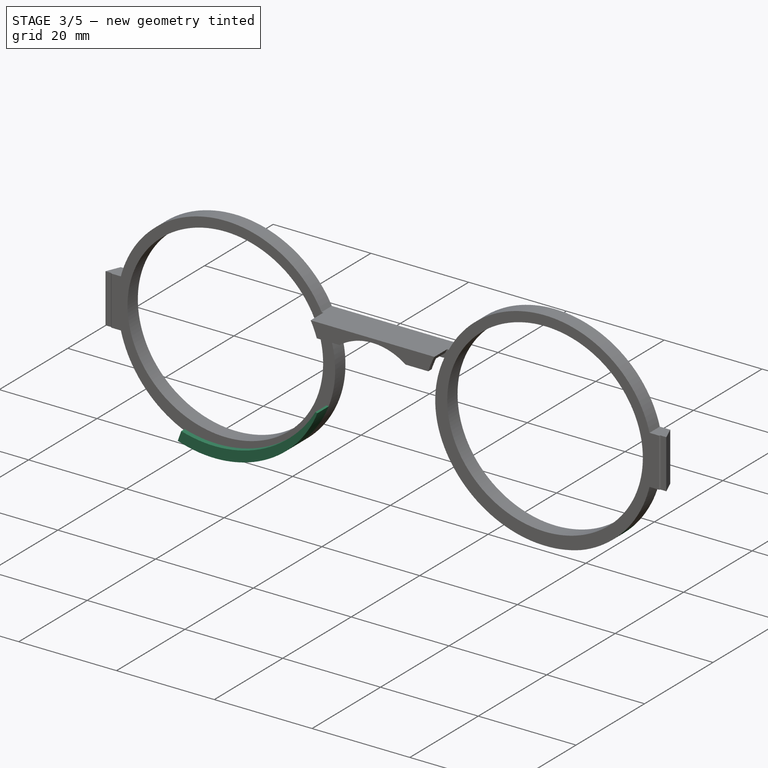
[diagram: stage 3 of 5 — iso view after this stage's code; geometry added in this stage tinted green]
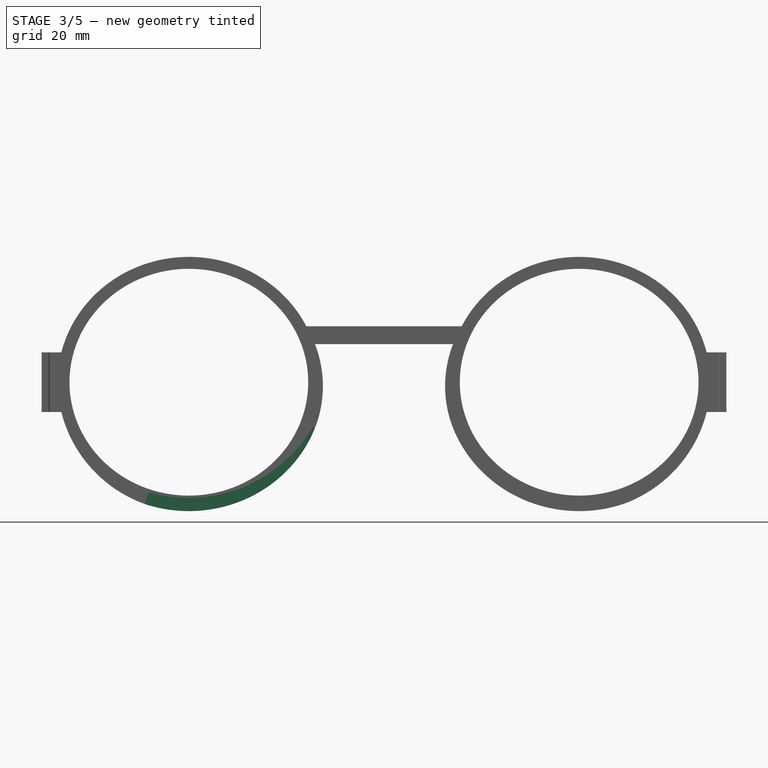
[diagram: stage 3 of 5 — front view after this stage's code; geometry added in this stage tinted green]
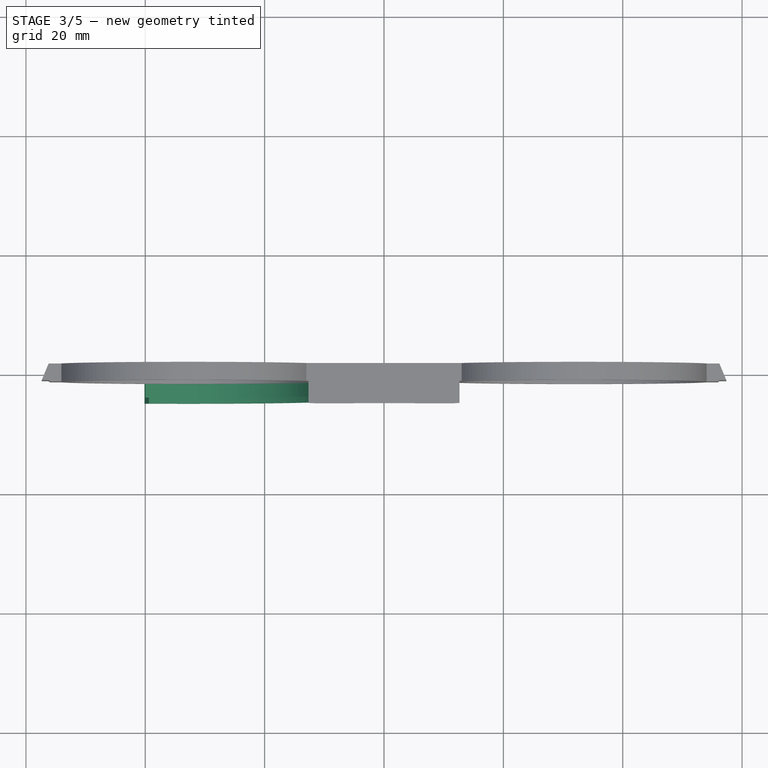
[diagram: stage 3 of 5 — top view after this stage's code; geometry added in this stage tinted green]
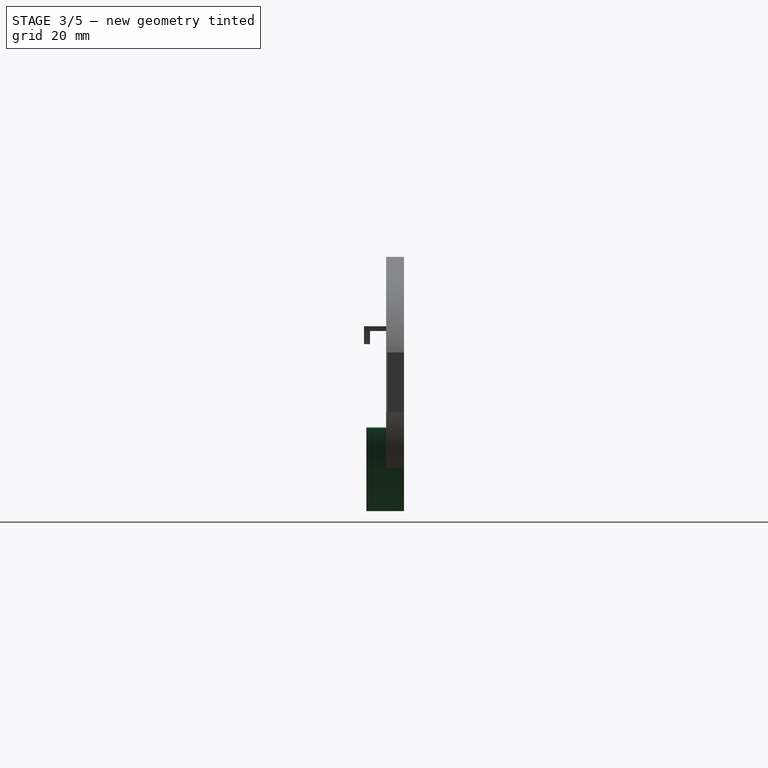
[diagram: stage 3 of 5 — right view after this stage's code; geometry added in this stage tinted green]
FEATURE [PartDesign::Pad] Pad009  label="Left-hand side hook wall #2"
  BaseFeature = -> Pad008
  Direction = (0,-1,2e-16)
  Length = 2.3
  Length2 = 10
  Placement = pos=(0,0,0) rot=(1,0,0;1.5708rad)
  Profile = -> Sketch028 [Edge3,Edge2,Edge4,Edge1]
  ReferenceAxis = -> Sketch028 [N_Axis]
  Refine = true
  Suppressed = false
  Type = 0
FEATURE [Sketcher::SketchObject] Sketch029
  ArcFitTolerance = 1e-06
  AttachmentSupport = -> [Pad009]
  ExternalGeometry = -> [Sketch028,Sketch]
  ExternalTypes = [0]
  FullyConstrained = true
  MakeInternals = false
  MapMode = 5
  Placement = pos=(0,-3.8,0) rot=(1,0,0;1.5708rad)
  sketch-geometry (12):
    g0: ArcOfEllipse CenterX=-32.7 CenterY=8e-16 CenterZ=0 NormalX=0 NormalY=0 NormalZ=1 MajorRadius=22.6 MinorRadius=21.5998 AngleXU=-3.14159 StartAngle=1.23603 EndAngle=2.77773
    g1: GeomPoint [constr] X=-55.3 Y=0 Z=0
    g2: LineSegment StartX=-40.1253 StartY=-20.4007 StartZ=0 EndX=-39.4068 EndY=-18.4267 EndZ=0
    g3: LineSegment [constr] StartX=-39.4068 StartY=-18.4267 StartZ=0 EndX=-39.2358 EndY=-17.9569 EndZ=0
    g4: ArcOfCircle CenterX=-32.7 CenterY=4.72632 CenterZ=0 NormalX=0 NormalY=0 NormalZ=1 AngleXU=0 Radius=24.1048 StartAngle=4.43043 EndAngle=5.74881
    g5: LineSegment StartX=-11.9557 StartY=-7.55032 StartZ=0 EndX=-11.5797 EndY=-7.68717 EndZ=0
    g6: LineSegment [constr] StartX=-39.2358 StartY=-17.9569 StartZ=0 EndX=-32.7 EndY=0 EndZ=0
    g7: LineSegment [constr] StartX=-32.7 StartY=8e-16 StartZ=0 EndX=-26.1642 EndY=-17.9569 EndZ=0
    g8: LineSegment [constr] StartX=-32.7 StartY=8e-16 StartZ=0 EndX=-32.7 EndY=-19 EndZ=0
    g9: LineSegment [constr] StartX=-39.2358 StartY=-17.9569 StartZ=0 EndX=-32.7 EndY=-17.9569 EndZ=0
    g10: LineSegment [constr] StartX=-32.7 StartY=-17.9569 StartZ=0 EndX=-26.1642 EndY=-17.9569 EndZ=0
    g11: LineSegment [constr] StartX=-26.1642 StartY=-17.9569 StartZ=0 EndX=-25.9932 EndY=-18.4267 EndZ=0
  constraints (34):
    c: Coincident(g0,g-5)
    c: Coincident(g0,g-3)
    c: PointOnObject(g1,g-5)
    c: PointOnObject(g1,g0)
    c: Tangent(g-5,g0,g1) = -1.5708
    c: PointOnObject(g0,g-4)
    c: PointOnObject(g1,g-1)
    c: Coincident(g2,g0)
    c: PointOnObject(g-3,g2)
    c: Coincident(g3,g2)
    c: PointOnObject(g3,g-6)
    c: PointOnObject(g3,g2)
    c: Distance(g3,g3) = 0.5
    c: Coincident(g4,g2)
    c: Coincident(g4,g-4)
    c: Coincident(g5,g4)
    c: Coincident(g0,g5)
    c: Coincident(g6,g3)
    c: Coincident(g6,g0)
    c: Coincident(g7,g0)
    c: Coincident(g8,g0)
    c: PointOnObject(g8,g-6)
    c: Coincident(g9,g3)
    c: PointOnObject(g9,g8)
    c: Coincident(g10,g9)
    c: Coincident(g10,g7)
    c: Equal(g9,g10)
    c: Perpendicular(g8,g9)
    c: Perpendicular(g10,g8)
    c: PointOnObject(g7,g-6)
    c: Coincident(g11,g7)
    c: PointOnObject(g11,g4)
    c: PointOnObject(g11,g7)
    c: Equal(g3,g11)
FEATURE [PartDesign::Pad] Pad010  label="Left-hand side hook"
  BaseFeature = -> Pad009
  Direction = (0,-1,2e-16)
  Length = 1
  Length2 = 10
  Placement = pos=(0,0,0) rot=(1,0,0;1.5708rad)
  Profile = -> Sketch029
  ReferenceAxis = -> Sketch029 [N_Axis]
  Refine = true
  Suppressed = false
  Type = 0
FEATURE [PartDesign::Mirrored] Mirrored  label="Right-hand side hook wall #1"
  BaseFeature = -> Pad010
  MirrorPlane = -> YZ_Plane
  Originals = -> [Pad008]
  Placement = pos=(0,0,0) rot=(1,0,0;1.5708rad)
  Refine = true
  Suppressed = false
  TransformMode = 0
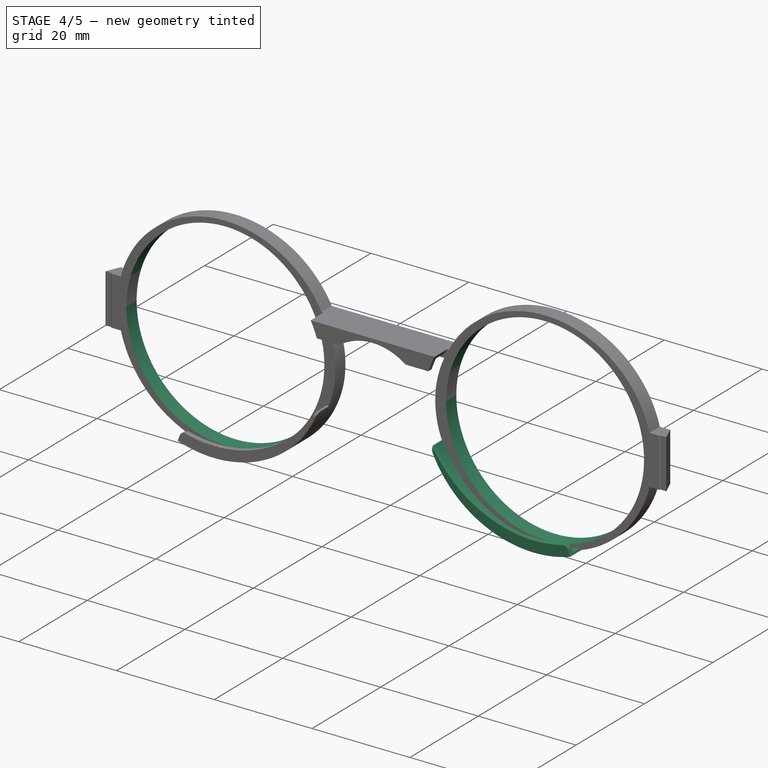
[diagram: stage 4 of 5 — iso view after this stage's code; geometry added in this stage tinted green]
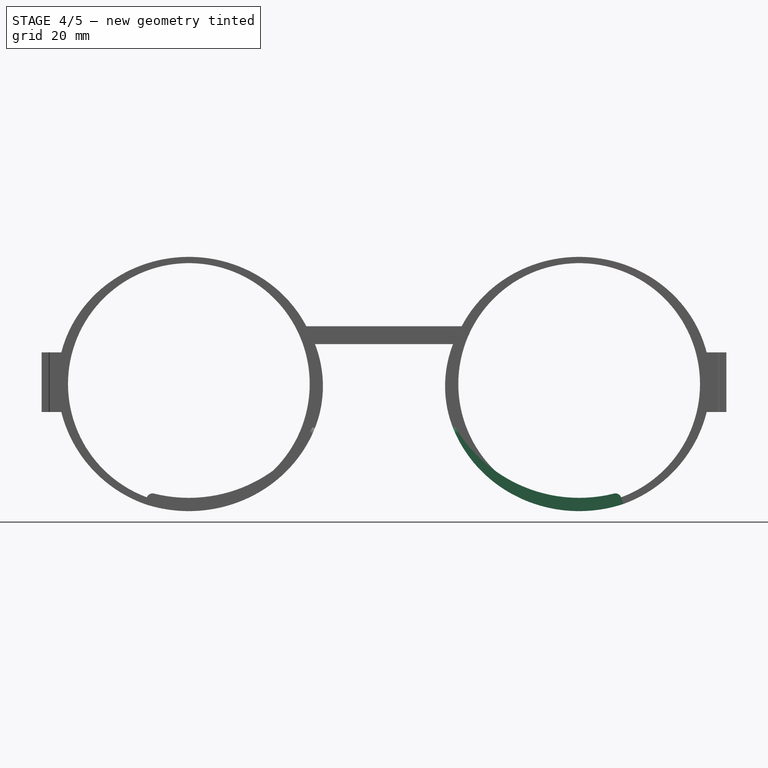
[diagram: stage 4 of 5 — front view after this stage's code; geometry added in this stage tinted green]
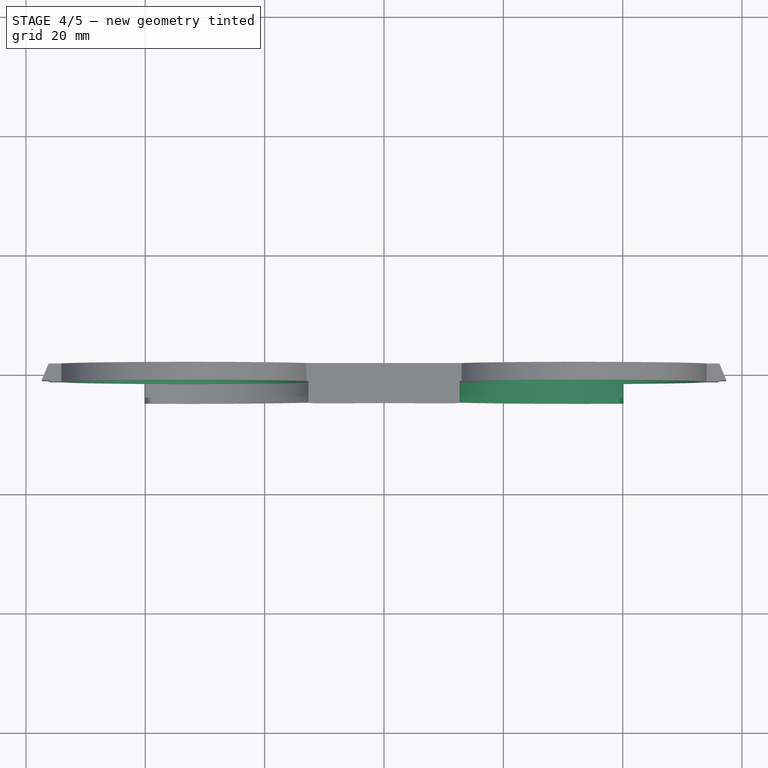
[diagram: stage 4 of 5 — top view after this stage's code; geometry added in this stage tinted green]
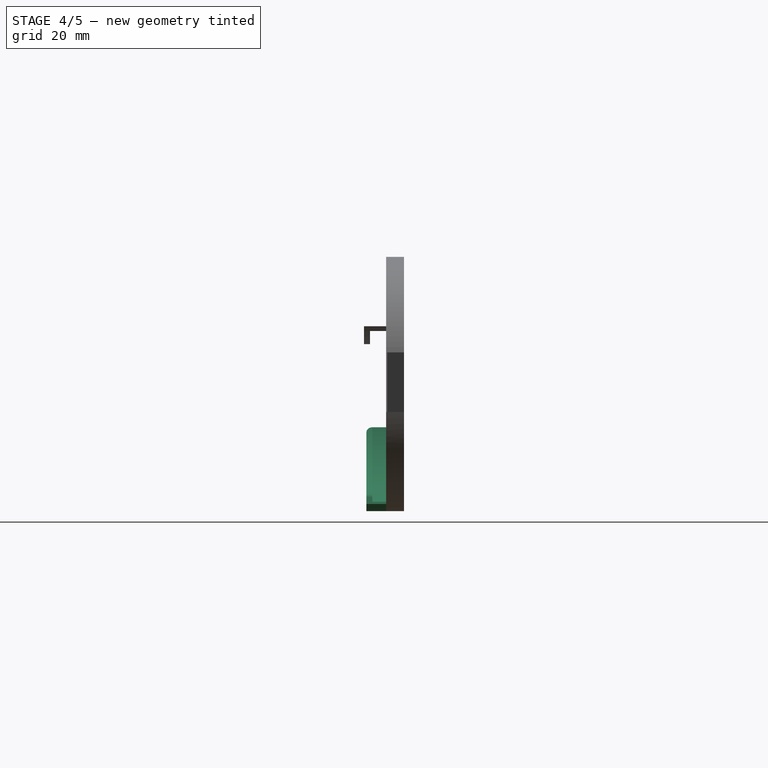
[diagram: stage 4 of 5 — right view after this stage's code; geometry added in this stage tinted green]
FEATURE [PartDesign::Mirrored] Mirrored001  label="Right-hand side hook wall #2"
  BaseFeature = -> Mirrored
  MirrorPlane = -> YZ_Plane
  Originals = -> [Pad009]
  Placement = pos=(0,0,0) rot=(1,0,0;1.5708rad)
  Refine = true
  Suppressed = false
  TransformMode = 0
FEATURE [PartDesign::Mirrored] Mirrored002  label="Right-hand side hook"
  BaseFeature = -> Mirrored001
  MirrorPlane = -> YZ_Plane
  Originals = -> [Pad010]
  Placement = pos=(0,0,0) rot=(1,0,0;1.5708rad)
  Refine = true
  Suppressed = false
  TransformMode = 0
FEATURE [PartDesign::Fillet] Fillet  label="Left and right hooks edge smoothing"
  Base = -> Mirrored002 [Edge145,Edge142,Edge75,Edge67]
  BaseFeature = -> Mirrored002
  Placement = pos=(0,0,0) rot=(1,0,0;1.5708rad)
  Radius = 1
  Refine = true
  SupportTransform = false
  Suppressed = false
  UseAllEdges = false
FEATURE [App::Point] Origin001  label="Origin"
  Role = Origin
FEATURE [Sketcher::SketchObject] Sketch030
  ArcFitTolerance = 1e-06
  AttachmentOffset = pos=(0,0,0) rot=(0,0,1;3.14159rad)
  AttachmentSupport = -> [Fillet]
  ExternalGeometry = -> [Sketch,Sketch028]
  ExternalTypes = [0,0]
  FullyConstrained = true
  MakeInternals = false
  MapMode = 5
  Placement = pos=(0,1.5,-1.7e-15) rot=(0,0.707107,0.707107;3.14159rad)
  sketch-geometry (4):
    g0: Circle CenterX=32.7 CenterY=-0.299897 CenterZ=0 NormalX=0 NormalY=0 NormalZ=1 AngleXU=0 Radius=20.25
    g1: LineSegment [constr] StartX=32.7 StartY=21 StartZ=0 EndX=32.7 EndY=19.9501 EndZ=0
    g2: LineSegment [constr] StartX=32.7 StartY=-20.5499 StartZ=0 EndX=32.7 EndY=-21.5998 EndZ=0
    g3: Circle CenterX=-32.7 CenterY=-0.299897 CenterZ=0 NormalX=0 NormalY=0 NormalZ=1 AngleXU=0 Radius=20.25
  constraints (13):
    c: Diameter(g0) = 40.5
    c: Vertical(g-3,g0)
    c: PointOnObject(g2,g0)
    c: PointOnObject(g2,g-4)
    c: PointOnObject(g0,g2)
    c: Equal(g1,g2)
    c: PointOnObject(g0,g1)
    c: PointOnObject(g1,g-3)
    c: PointOnObject(g1,g0)
    c: Vertical(g1)
    c: Vertical(g2)
    c: Equal(g0,g3)
    c: Symmetric(g0,g3,g-2)
FEATURE [PartDesign::Pocket] Pocket003  label="38.8 mm round lens holders #1"
  BaseFeature = -> Fillet
  Direction = (0,-1,-2e-16)
  Length = 0
  Length2 = 5
  Placement = pos=(0,0,0) rot=(1,0,0;1.5708rad)
  Profile = -> Sketch030
  ReferenceAxis = -> Sketch030 [N_Axis]
  Refine = true
  Suppressed = false
  Type = 3
  UpToFace = -> Fillet [Face10]
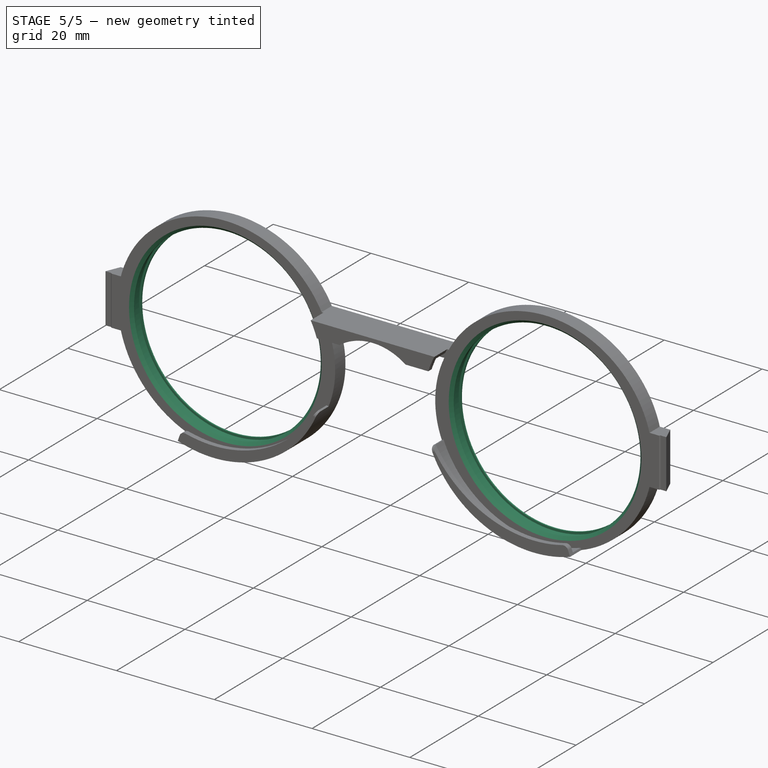
[diagram: stage 5 of 5 — iso view after this stage's code; geometry added in this stage tinted green]
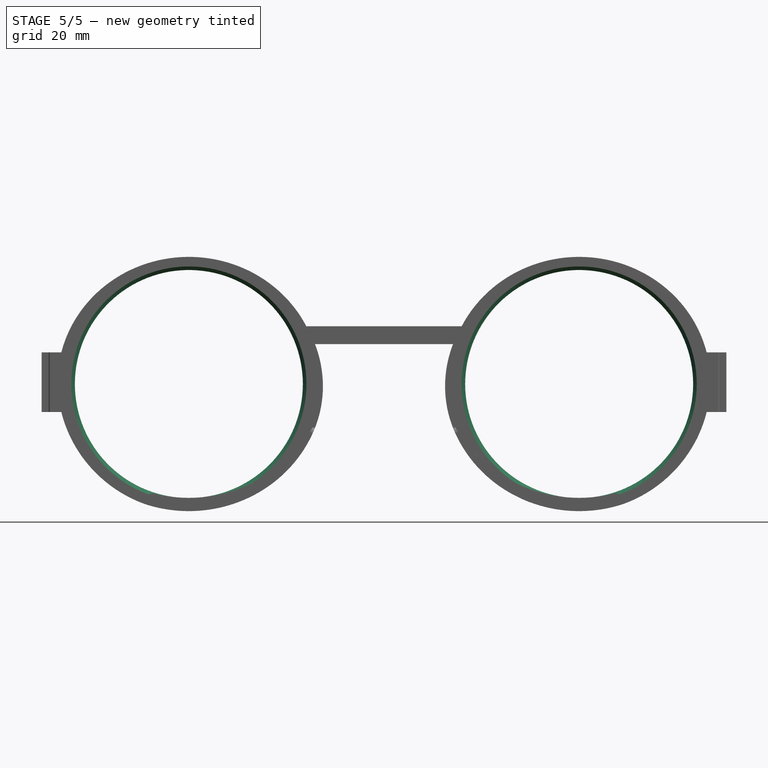
[diagram: stage 5 of 5 — front view after this stage's code; geometry added in this stage tinted green]
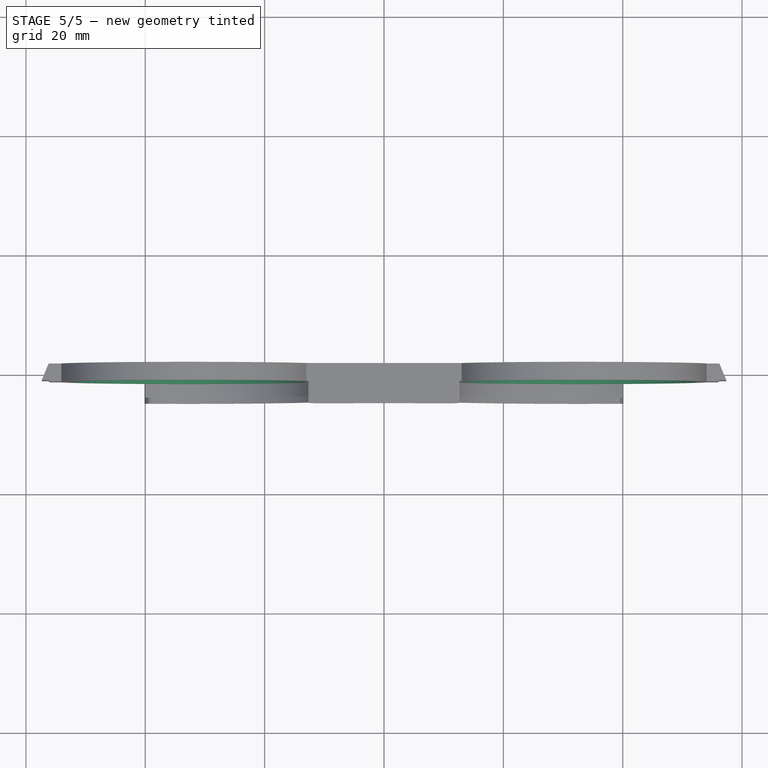
[diagram: stage 5 of 5 — top view after this stage's code; geometry added in this stage tinted green]
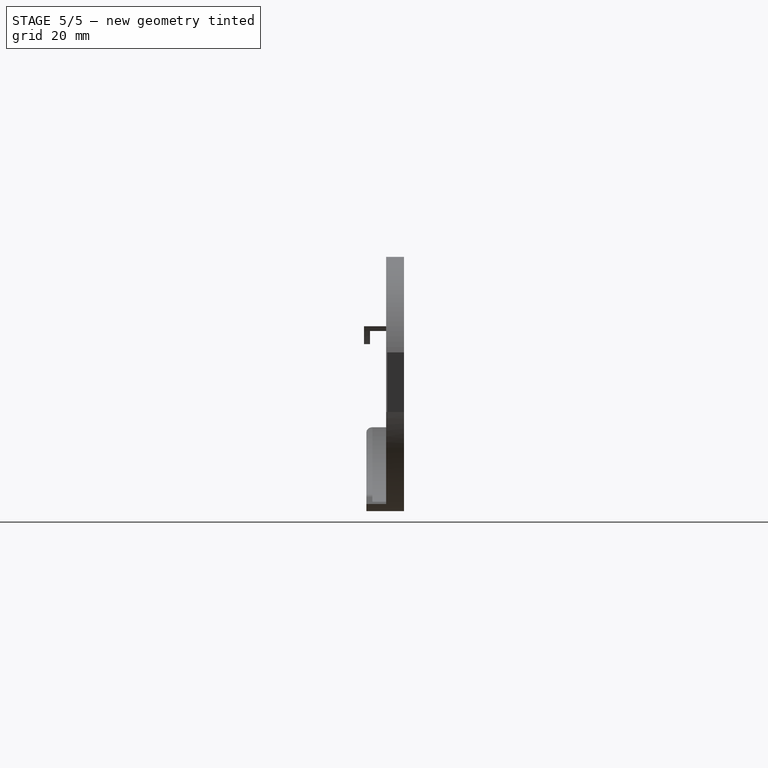
[diagram: stage 5 of 5 — right view after this stage's code; geometry added in this stage tinted green]
FEATURE [Sketcher::SketchObject] Sketch031
  ArcFitTolerance = 1e-06
  AttachmentOffset = pos=(0,0,0) rot=(0,0,1;3.14159rad)
  AttachmentSupport = -> [Pocket003]
  ExternalGeometry = -> [Sketch030]
  ExternalTypes = [0,0]
  FullyConstrained = true
  MakeInternals = false
  MapMode = 5
  Placement = pos=(0,1.5,-1.7e-15) rot=(0,0.707107,0.707107;3.14159rad)
  sketch-geometry (4):
    g0: Circle CenterX=32.7 CenterY=-0.299897 CenterZ=0 NormalX=0 NormalY=0 NormalZ=1 AngleXU=0 Radius=19.1
    g1: Circle CenterX=-32.7 CenterY=-0.299897 CenterZ=0 NormalX=0 NormalY=0 NormalZ=1 AngleXU=0 Radius=19.1
    g2: Circle CenterX=32.7 CenterY=-0.299897 CenterZ=0 NormalX=0 NormalY=0 NormalZ=1 AngleXU=0 Radius=20.25
    g3: Circle CenterX=-32.7 CenterY=-0.299897 CenterZ=0 NormalX=0 NormalY=0 NormalZ=1 AngleXU=0 Radius=20.25
  constraints (8):
    c: Coincident(g0,g-3)
    c: Diameter(g0) = 38.2
    c: Equal(g0,g1)
    c: Symmetric(g0,g1,g-2)
    c: Coincident(g2,g0)
    c: Equal(g-3,g2)
    c: Equal(g2,g3)
    c: Symmetric(g2,g3,g-2)
FEATURE [PartDesign::Pad] Pad011  label="38.8 mm round lens holders #2"
  BaseFeature = -> Pocket003
  Direction = (0,1,2e-16)
  Length = 0.3
  Length2 = 10
  Placement = pos=(0,0,0) rot=(1,0,0;1.5708rad)
  Profile = -> Sketch031
  ReferenceAxis = -> Sketch031 [N_Axis]
  Refine = true
  Reversed = true
  Suppressed = false
  Type = 0
FEATURE [Sketcher::SketchObject] Sketch032
  ArcFitTolerance = 1e-06
  AttachmentSupport = -> [Pad011]
  ExternalGeometry = -> [Sketch030]
  ExternalTypes = [0]
  FullyConstrained = true
  MakeInternals = false
  MapMode = 5
  Placement = pos=(0,1.2,0) rot=(1,0,0;1.5708rad)
  sketch-geometry (5):
    g0: Circle CenterX=-32.7 CenterY=-0.299897 CenterZ=0 NormalX=0 NormalY=0 NormalZ=1 AngleXU=0 Radius=20.25
    g1: Circle CenterX=-32.7 CenterY=-0.299897 CenterZ=0 NormalX=0 NormalY=0 NormalZ=1 AngleXU=0 Radius=19.55
    g2: Circle CenterX=32.7 CenterY=-0.299897 CenterZ=0 NormalX=0 NormalY=0 NormalZ=1 AngleXU=0 Radius=20.25
    g3: Circle CenterX=32.7 CenterY=-0.299897 CenterZ=0 NormalX=0 NormalY=0 NormalZ=1 AngleXU=0 Radius=19.55
    g4: Circle [constr] CenterX=32.7 CenterY=-0.299897 CenterZ=0 NormalX=0 NormalY=0 NormalZ=1 AngleXU=0 Radius=20.25
  constraints (10):
    c: Coincident(g0,g-3)
    c: Equal(g-3,g0)
    c: Coincident(g1,g0)
    c: Diameter(g1) = 39.1
    c: Equal(g-3,g4)
    c: Symmetric(g-3,g4,g-2)
    c: Equal(g0,g2)
    c: Symmetric(g0,g2,g-2)
    c: Equal(g1,g3)
    c: Symmetric(g1,g3,g-2)
FEATURE [PartDesign::Pad] Pad012  label="38.8 mm round lens holders #3"
  BaseFeature = -> Pad011
  Direction = (0,-1,0)
  Length = 1.8
  Length2 = 10
  Placement = pos=(0,0,0) rot=(1,0,0;1.5708rad)
  Profile = -> Sketch032
  ReferenceAxis = -> Sketch032 [N_Axis]
  Refine = true
  Suppressed = false
  Type = 0
FEATURE [Sketcher::SketchObject] Sketch033
  ArcFitTolerance = 1e-06
  AttachmentSupport = -> [Pad012]
  ExternalGeometry = -> [Sketch031,Sketch030]
  ExternalTypes = [0,0]
  FullyConstrained = true
  MakeInternals = false
  MapMode = 5
  Placement = pos=(0,-0.6,1e-16) rot=(1,0,0;1.5708rad)
  sketch-geometry (4):
    g0: Circle CenterX=-32.7 CenterY=-0.299897 CenterZ=0 NormalX=0 NormalY=0 NormalZ=1 AngleXU=0 Radius=20.25
    g1: Circle CenterX=-32.7 CenterY=-0.299897 CenterZ=0 NormalX=0 NormalY=0 NormalZ=1 AngleXU=0 Radius=19.1
    g2: Circle CenterX=32.7 CenterY=-0.299897 CenterZ=0 NormalX=0 NormalY=0 NormalZ=1 AngleXU=0 Radius=19.1
    g3: Circle CenterX=32.7 CenterY=-0.299897 CenterZ=0 NormalX=0 NormalY=0 NormalZ=1 AngleXU=0 Radius=20.25
  constraints (8):
    c: Coincident(g0,g-4)
    c: Coincident(g1,g0)
    c: Equal(g-3,g1)
    c: Equal(g0,g-4)
    c: Equal(g0,g3)
    c: Symmetric(g0,g3,g-2)
    c: Equal(g1,g2)
    c: Symmetric(g1,g2,g-2)
FEATURE [PartDesign::Pad] Pad013  label="38.8 mm round lens holders #4"
  BaseFeature = -> Pad012
  Direction = (0,-1,2e-16)
  Length = 10
  Length2 = 10
  Placement = pos=(0,0,0) rot=(1,0,0;1.5708rad)
  Profile = -> Sketch033
  ReferenceAxis = -> Sketch033 [N_Axis]
  Refine = true
  Suppressed = false
  Type = 3
  UpToFace = -> Pad012 [Face5]
FEATURE [PartDesign::Chamfer] Chamfer  label="38.8 mm round lens holders #5"
  Angle = 45
  Base = -> Pad013 [Edge163,Edge168]
  BaseFeature = -> Pad013
  ChamferType = 0
  FlipDirection = false
  Placement = pos=(0,0,0) rot=(1,0,0;1.5708rad)
  Refine = true
  Size = 0.6
  Size2 = 1
  SupportTransform = false
  Suppressed = false
  UseAllEdges = false
FEATURE [PartDesign::Body] Body
  AllowCompound = false
  Group = -> [Sketch,Pad,Sketch012,Pad003,Sketch021,Pad007,Pad005,Sketch022,Pad006,Sketch025,Pocket001,Sketch026,Pocket002,Sketch028,Pad008,Pad009,Sketch029,Pad010,Mirrored,Mirrored001,Mirrored002,Fillet,Sketch030,Pocket003,Sketch031,Pad011,Sketch032,Pad012,Sketch033,Pad013,Chamfer]
  Origin = -> Origin
  Tip = -> Chamfer
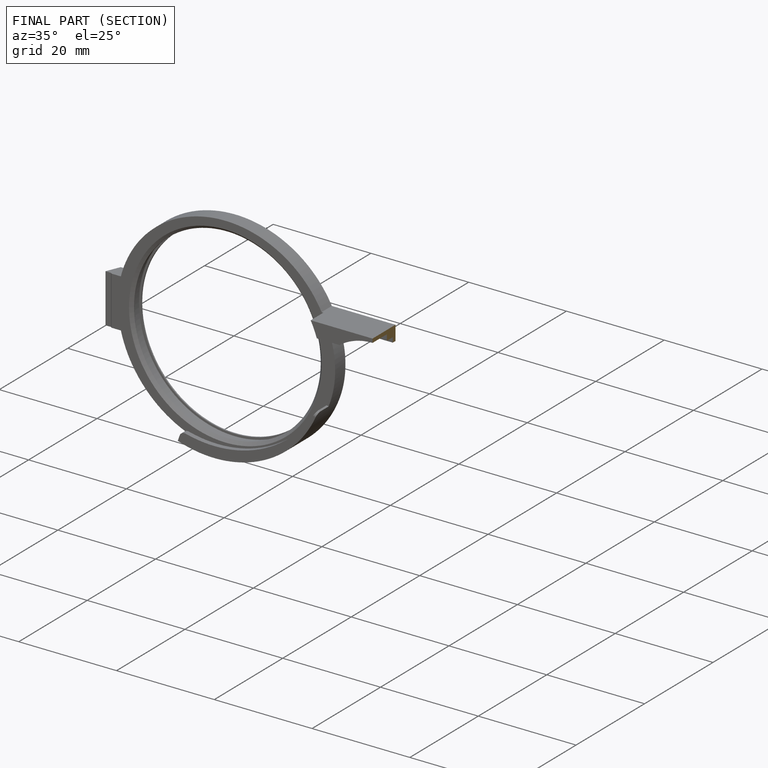
[diagram: finished part — half-section view (interior)]
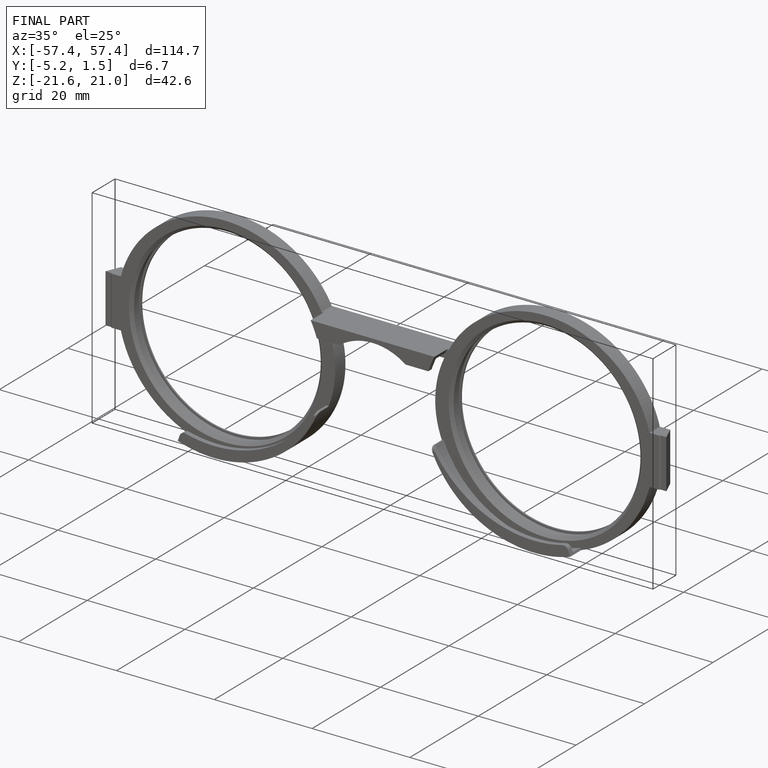
[diagram: finished part — iso view with bounding-box wireframe]
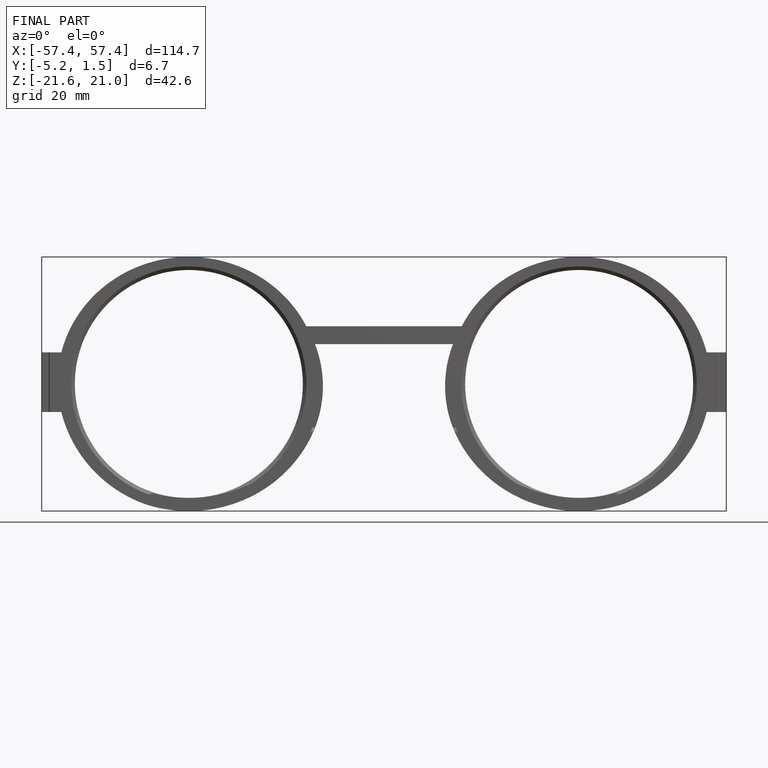
[diagram: finished part — front view with bounding-box wireframe]
